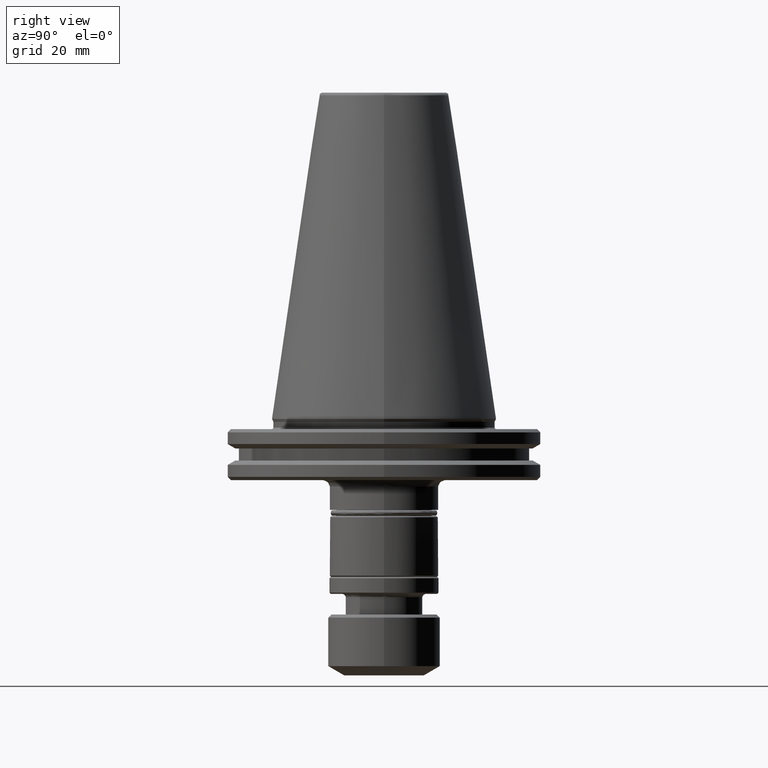
[diagram: clean part render]
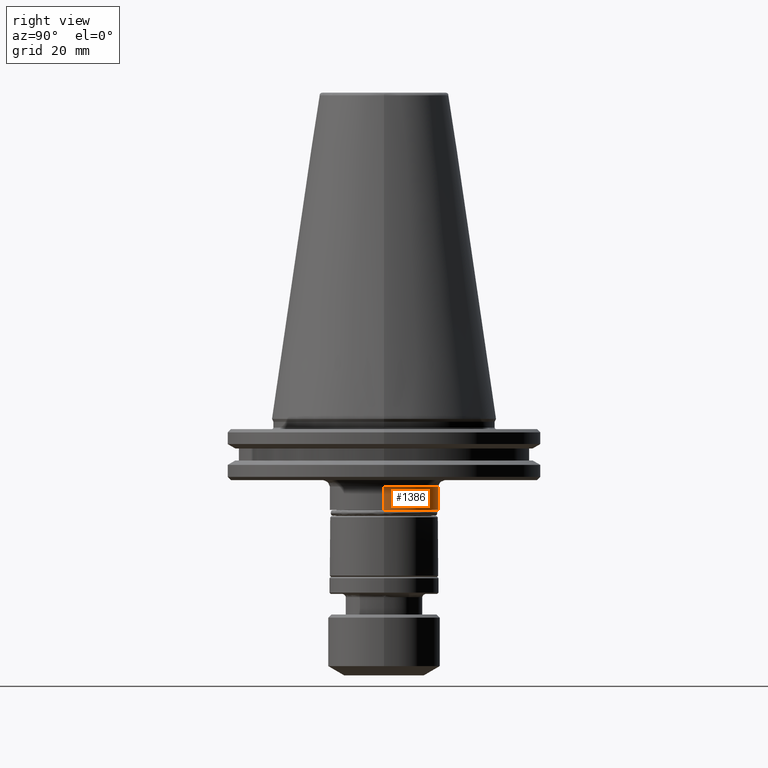
[diagram: same view with one face highlighted and labeled with its STEP entity id]
A machine part, right view. The second image highlights one B-rep face of the part: STEP entity #1386.
In plain terms, the highlighted cylindrical surface (partial cylindrical patch) has radius 17 mm, axis along (0, 0, 1).
Its self-contained STEP definition (entity closure, byte-faithful):
#203 = ORIENTED_EDGE ( 'NONE', *, *, #1285, .T. ) ;
#405 = AXIS2_PLACEMENT_3D ( 'NONE', #1142, #1136, #1164 ) ;
#413 = LINE ( 'NONE', #1250, #2467 ) ;
#455 = EDGE_CURVE ( 'NONE', #2051, #1705, #1682, .T. ) ;
#614 = CARTESIAN_POINT ( 'NONE',  ( -17.00000000000000000, 2.081899558550500300E-015, -28.40000000000001300 ) ) ;
#743 = AXIS2_PLACEMENT_3D ( 'NONE', #1221, #1215, #1213 ) ;
#791 = CARTESIAN_POINT ( 'NONE',  ( 17.00000000000000000, 0.0000000000000000000, -21.10000000000000900 ) ) ;
#806 = EDGE_LOOP ( 'NONE', ( #203, #1145, #2304, #1341 ) ) ;
#965 = VERTEX_POINT ( 'NONE', #1527 ) ;
#1119 = VECTOR ( 'NONE', #2227, 1000.000000000000000 ) ;
#1136 = DIRECTION ( 'NONE',  ( 0.0000000000000000000, 0.0000000000000000000, 1.000000000000000000 ) ) ;
#1142 = CARTESIAN_POINT ( 'NONE',  ( 0.0000000000000000000, 0.0000000000000000000, 0.0000000000000000000 ) ) ;
#1145 = ORIENTED_EDGE ( 'NONE', *, *, #1237, .T. ) ;
#1164 = DIRECTION ( 'NONE',  ( 1.000000000000000000, 0.0000000000000000000, 0.0000000000000000000 ) ) ;
#1213 = DIRECTION ( 'NONE',  ( 1.000000000000000000, 0.0000000000000000000, 0.0000000000000000000 ) ) ;
#1215 = DIRECTION ( 'NONE',  ( 0.0000000000000000000, 0.0000000000000000000, 1.000000000000000000 ) ) ;
#1221 = CARTESIAN_POINT ( 'NONE',  ( 0.0000000000000000000, 0.0000000000000000000, -28.40000000000001300 ) ) ;
#1237 = EDGE_CURVE ( 'NONE', #1885, #965, #413, .T. ) ;
#1250 = CARTESIAN_POINT ( 'NONE',  ( -17.00000000000000000, 2.081899558550500300E-015, 0.0000000000000000000 ) ) ;
#1262 = DIRECTION ( 'NONE',  ( 0.0000000000000000000, 0.0000000000000000000, 1.000000000000000000 ) ) ;
#1285 = EDGE_CURVE ( 'NONE', #2051, #1885, #1860, .T. ) ;
#1341 = ORIENTED_EDGE ( 'NONE', *, *, #455, .F. ) ;
#1386 = ADVANCED_FACE ( 'NONE', ( #2275 ), #1801, .T. ) ;
#1527 = CARTESIAN_POINT ( 'NONE',  ( -17.00000000000000000, 2.081899558550500300E-015, -21.10000000000000900 ) ) ;
#1680 = AXIS2_PLACEMENT_3D ( 'NONE', #1908, #1906, #1898 ) ;
#1682 = LINE ( 'NONE', #2232, #1119 ) ;
#1705 = VERTEX_POINT ( 'NONE', #791 ) ;
#1801 = CYLINDRICAL_SURFACE ( 'NONE', #405, 17.00000000000000000 ) ;
#1860 = CIRCLE ( 'NONE', #743, 17.00000000000000000 ) ;
#1885 = VERTEX_POINT ( 'NONE', #614 ) ;
#1898 = DIRECTION ( 'NONE',  ( -1.000000000000000000, 0.0000000000000000000, 0.0000000000000000000 ) ) ;
#1906 = DIRECTION ( 'NONE',  ( 0.0000000000000000000, 0.0000000000000000000, -1.000000000000000000 ) ) ;
#1908 = CARTESIAN_POINT ( 'NONE',  ( 0.0000000000000000000, 0.0000000000000000000, -21.10000000000000900 ) ) ;
#2051 = VERTEX_POINT ( 'NONE', #2451 ) ;
#2095 = EDGE_CURVE ( 'NONE', #965, #1705, #2497, .T. ) ;
#2227 = DIRECTION ( 'NONE',  ( 0.0000000000000000000, 0.0000000000000000000, 1.000000000000000000 ) ) ;
#2232 = CARTESIAN_POINT ( 'NONE',  ( 17.00000000000000000, 0.0000000000000000000, 0.0000000000000000000 ) ) ;
#2275 = FACE_OUTER_BOUND ( 'NONE', #806, .T. ) ;
#2304 = ORIENTED_EDGE ( 'NONE', *, *, #2095, .T. ) ;
#2451 = CARTESIAN_POINT ( 'NONE',  ( 17.00000000000000000, 0.0000000000000000000, -28.40000000000001300 ) ) ;
#2467 = VECTOR ( 'NONE', #1262, 1000.000000000000000 ) ;
#2497 = CIRCLE ( 'NONE', #1680, 17.00000000000000000 ) ;